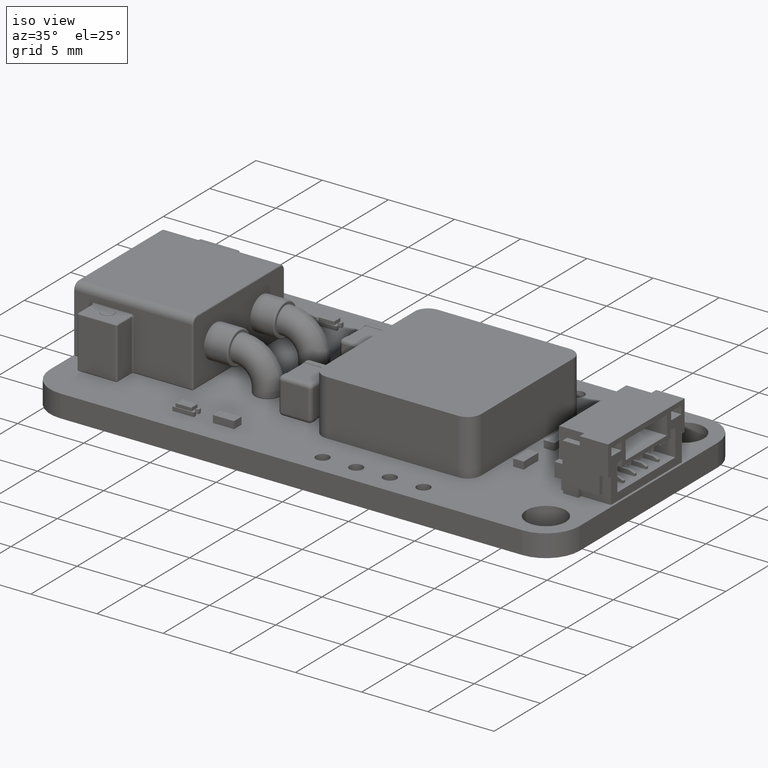
[diagram: clean part render]
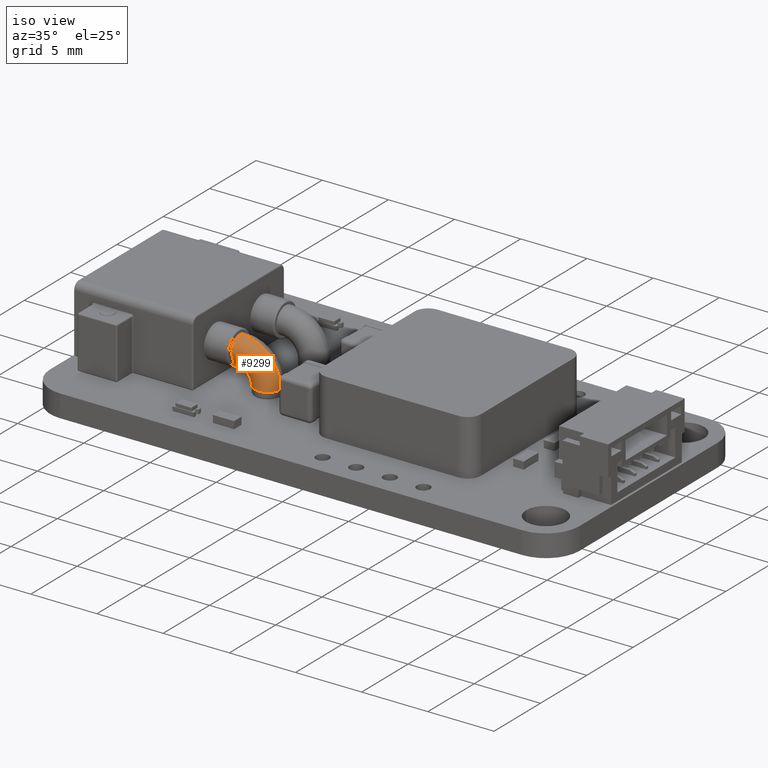
[diagram: same view with one face highlighted and labeled with its STEP entity id]
A machine part, iso view. The second image highlights one B-rep face of the part: STEP entity #9299.
In plain terms, the highlighted toroidal blend (fillet) surface has major radius 2 mm and minor (blend) radius 1 mm.
Its self-contained STEP definition (entity closure, byte-faithful):
#616 = DIRECTION ( 'NONE',  ( 0.000000000000000000, 0.000000000000000000, 1.000000000000000000 ) ) ;
#3018 = AXIS2_PLACEMENT_3D ( 'NONE', #12401, #12766, #18376 ) ;
#6762 = AXIS2_PLACEMENT_3D ( 'NONE', #33023, #26723, #616 ) ;
#7774 = DIRECTION ( 'NONE',  ( 0.000000000000000000, 0.000000000000000000, 1.000000000000000000 ) ) ;
#8420 = EDGE_CURVE ( 'NONE', #38194, #26601, #14725, .T. ) ;
#9299 = ADVANCED_FACE ( 'NONE', ( #11974 ), #27146, .T. ) ;
#9591 = CARTESIAN_POINT ( 'NONE',  ( 36.40690198740678341, 32.84791677716785330, 0.4999999999999998890 ) ) ;
#10532 = CIRCLE ( 'NONE', #26612, 1.000000000000002220 ) ;
#11974 = FACE_OUTER_BOUND ( 'NONE', #22737, .T. ) ;
#12401 = CARTESIAN_POINT ( 'NONE',  ( 36.40690198740678341, 32.84791677716785330, 2.499999999999999556 ) ) ;
#12766 = DIRECTION ( 'NONE',  ( 0.9999999999999849010, 1.748455529999999694E-07, 0.000000000000000000 ) ) ;
#13487 = EDGE_CURVE ( 'NONE', #38194, #20996, #29520, .T. ) ;
#14079 = ORIENTED_EDGE ( 'NONE', *, *, #8420, .F. ) ;
#14131 = DIRECTION ( 'NONE',  ( -1.748455529999999694E-07, 0.9999999999999849010, 0.000000000000000000 ) ) ;
#14725 = CIRCLE ( 'NONE', #24705, 2.999999999999999556 ) ;
#14965 = EDGE_CURVE ( 'NONE', #20996, #25148, #17216, .T. ) ;
#17216 = CIRCLE ( 'NONE', #20348, 0.9999999999999995559 ) ;
#18153 = CARTESIAN_POINT ( 'NONE',  ( 36.40690198740678341, 32.84791677716785330, 1.499999999999999778 ) ) ;
#18376 = DIRECTION ( 'NONE',  ( 0.000000000000000000, 0.000000000000000000, -1.000000000000000000 ) ) ;
#19061 = DIRECTION ( 'NONE',  ( -1.748455529999999694E-07, 0.9999999999999849010, 0.000000000000000000 ) ) ;
#19624 = EDGE_CURVE ( 'NONE', #26601, #25148, #10532, .T. ) ;
#20348 = AXIS2_PLACEMENT_3D ( 'NONE', #9591, #19061, #33147 ) ;
#20996 = VERTEX_POINT ( 'NONE', #18153 ) ;
#21357 = CARTESIAN_POINT ( 'NONE',  ( 38.40690198740675498, 32.84791712685896670, 0.4999999999999998890 ) ) ;
#22737 = EDGE_LOOP ( 'NONE', ( #14079, #23353, #24488, #30733 ) ) ;
#23353 = ORIENTED_EDGE ( 'NONE', *, *, #13487, .T. ) ;
#24488 = ORIENTED_EDGE ( 'NONE', *, *, #14965, .T. ) ;
#24705 = AXIS2_PLACEMENT_3D ( 'NONE', #28262, #14131, #7774 ) ;
#25066 = DIRECTION ( 'NONE',  ( -0.9999999999999847899, -1.748455547012635529E-07, -1.084202172485501969E-16 ) ) ;
#25148 = VERTEX_POINT ( 'NONE', #25902 ) ;
#25902 = CARTESIAN_POINT ( 'NONE',  ( 37.40690198740676919, 32.84791695201341355, 0.4999999999999998890 ) ) ;
#26601 = VERTEX_POINT ( 'NONE', #29051 ) ;
#26612 = AXIS2_PLACEMENT_3D ( 'NONE', #21357, #30417, #25066 ) ;
#26723 = DIRECTION ( 'NONE',  ( -1.748455529999999430E-07, 0.9999999999999846789, 0.000000000000000000 ) ) ;
#27146 = TOROIDAL_SURFACE ( 'NONE', #6762, 2.000000000000000000, 1.000000000000000000 ) ;
#28262 = CARTESIAN_POINT ( 'NONE',  ( 36.40690198740678341, 32.84791677716785330, 0.4999999999999998890 ) ) ;
#29051 = CARTESIAN_POINT ( 'NONE',  ( 39.40690198740674077, 32.84791730170451274, 0.4999999999999998890 ) ) ;
#29520 = CIRCLE ( 'NONE', #3018, 0.9999999999999997780 ) ;
#30417 = DIRECTION ( 'NONE',  ( 5.421010862427917217E-17, 9.478396420602302572E-24, -1.000000000000000000 ) ) ;
#30733 = ORIENTED_EDGE ( 'NONE', *, *, #19624, .F. ) ;
#33023 = CARTESIAN_POINT ( 'NONE',  ( 36.40690198740678341, 32.84791677716785330, 0.4999999999999998890 ) ) ;
#33147 = DIRECTION ( 'NONE',  ( 0.000000000000000000, 0.000000000000000000, 1.000000000000000000 ) ) ;
#36216 = CARTESIAN_POINT ( 'NONE',  ( 36.40690198740678341, 32.84791677716785330, 3.499999999999999556 ) ) ;
#38194 = VERTEX_POINT ( 'NONE', #36216 ) ;